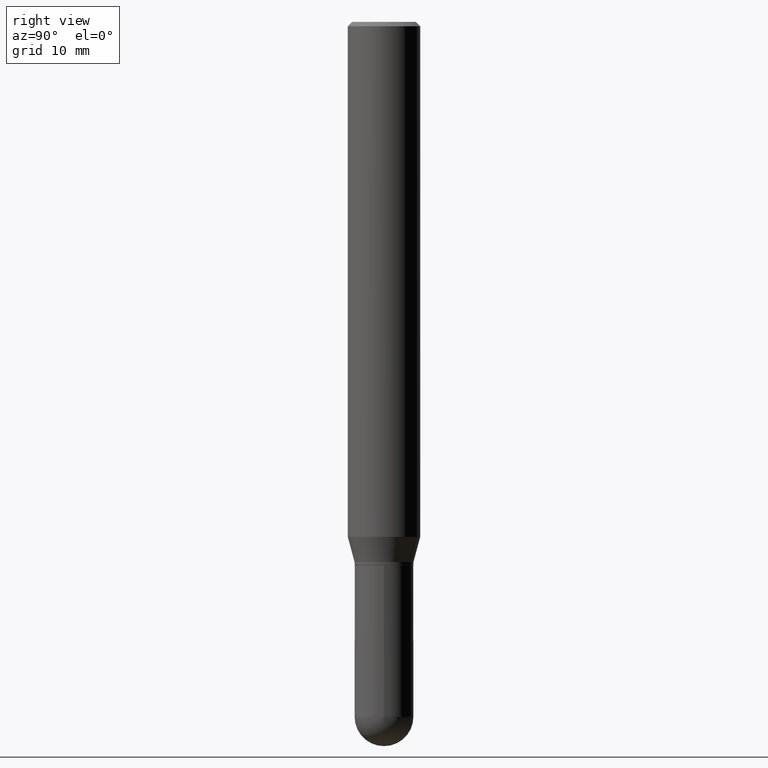
[diagram: clean part render]
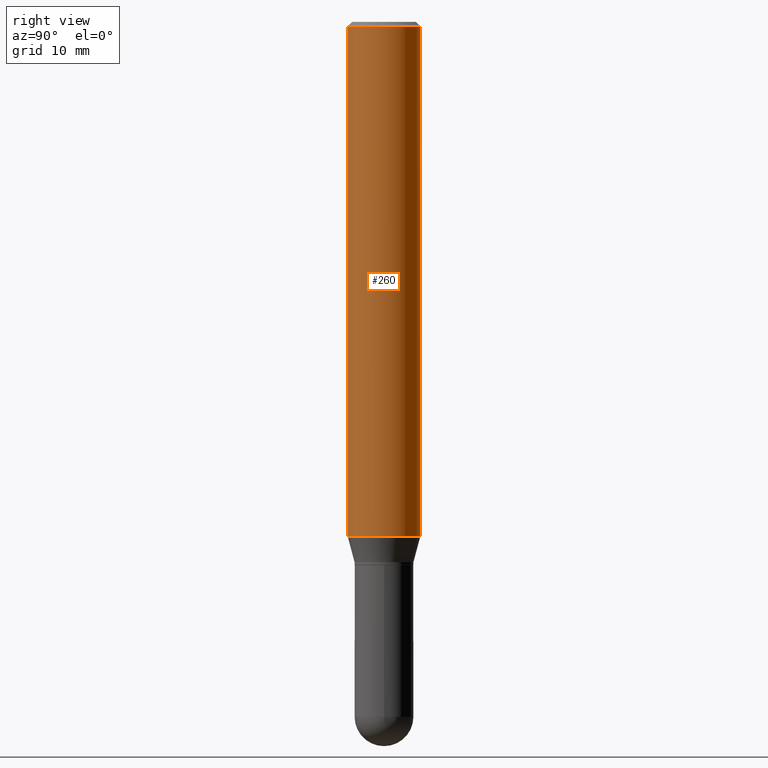
[diagram: same view with one face highlighted and labeled with its STEP entity id]
A machine part, right view. The second image highlights one B-rep face of the part: STEP entity #260.
In plain terms, the highlighted cylindrical surface (edge-blend (fillet) strip) has radius 3.175 mm, axis along (-0, 0, 1).
Its self-contained STEP definition (entity closure, byte-faithful):
#4 = CARTESIAN_POINT ( 'NONE',  ( -8.728703347107828458E-16, -0.1250000000000000555, -0.01499999999999956403 ) ) ;
#45 = CARTESIAN_POINT ( 'NONE',  ( 0.000000000000000000, 0.000000000000000000, 0.000000000000000000 ) ) ;
#51 = ORIENTED_EDGE ( 'NONE', *, *, #296, .F. ) ;
#66 = CIRCLE ( 'NONE', #266, 0.1250000000000000000 ) ;
#81 = DIRECTION ( 'NONE',  ( -6.982962677686265922E-15, -1.000000000000000000, 3.491458814188467583E-15 ) ) ;
#122 = DIRECTION ( 'NONE',  ( -6.982962677686265922E-15, -1.000000000000000000, 3.483106191921935554E-15 ) ) ;
#167 = CYLINDRICAL_SURFACE ( 'NONE', #397, 0.1250000000000000000 ) ;
#169 = VECTOR ( 'NONE', #217, 39.37007874015748143 ) ;
#175 = CARTESIAN_POINT ( 'NONE',  ( 8.881784197001688169E-16, 0.1249999999999999445, -0.01500000000000043486 ) ) ;
#177 = VECTOR ( 'NONE', #385, 39.37007874015748143 ) ;
#180 = EDGE_CURVE ( 'NONE', #374, #474, #222, .T. ) ;
#204 = CARTESIAN_POINT ( 'NONE',  ( 3.668226802601146923E-31, -5.237188221282701522E-17, -0.01499999999999999944 ) ) ;
#205 = EDGE_CURVE ( 'NONE', #206, #374, #66, .T. ) ;
#206 = VERTEX_POINT ( 'NONE', #465 ) ;
#217 = DIRECTION ( 'NONE',  ( -2.445484535067430768E-29, 3.491458814188467188E-15, 1.000000000000000000 ) ) ;
#222 = LINE ( 'NONE', #227, #177 ) ;
#227 = CARTESIAN_POINT ( 'NONE',  ( 8.881784197001251337E-16, 0.1250000000000000000, -4.364323517735584479E-16 ) ) ;
#239 = CARTESIAN_POINT ( 'NONE',  ( 8.881784197001684225E-16, 0.1249999999999937828, -1.777483408562510636 ) ) ;
#247 = CARTESIAN_POINT ( 'NONE',  ( -8.728703347107832402E-16, -0.1250000000000000000, 4.364323517735584479E-16 ) ) ;
#260 = ADVANCED_FACE ( 'NONE', ( #280 ), #167, .T. ) ;
#266 = AXIS2_PLACEMENT_3D ( 'NONE', #435, #315, #311 ) ;
#280 = FACE_OUTER_BOUND ( 'NONE', #364, .T. ) ;
#296 = EDGE_CURVE ( 'NONE', #359, #474, #375, .T. ) ;
#311 = DIRECTION ( 'NONE',  ( -6.982962677686265922E-15, -1.000000000000000000, 4.370956789862821150E-15 ) ) ;
#315 = DIRECTION ( 'NONE',  ( -2.445484535067431049E-29, 3.491458814188467583E-15, 1.000000000000000000 ) ) ;
#358 = DIRECTION ( 'NONE',  ( -2.445484535067431049E-29, 3.491458814188467583E-15, 1.000000000000000000 ) ) ;
#359 = VERTEX_POINT ( 'NONE', #4 ) ;
#364 = EDGE_LOOP ( 'NONE', ( #482, #494, #51, #476 ) ) ;
#374 = VERTEX_POINT ( 'NONE', #239 ) ;
#375 = CIRCLE ( 'NONE', #427, 0.1250000000000000000 ) ;
#385 = DIRECTION ( 'NONE',  ( -2.445484535067430768E-29, 3.491458814188467188E-15, 1.000000000000000000 ) ) ;
#397 = AXIS2_PLACEMENT_3D ( 'NONE', #45, #483, #81 ) ;
#427 = AXIS2_PLACEMENT_3D ( 'NONE', #204, #358, #122 ) ;
#435 = CARTESIAN_POINT ( 'NONE',  ( 4.346808186978562239E-29, -6.206010113899336320E-15, -1.777483408562509970 ) ) ;
#465 = CARTESIAN_POINT ( 'NONE',  ( -8.728703347107399515E-16, -0.1250000000000062172, -1.777483408562509526 ) ) ;
#474 = VERTEX_POINT ( 'NONE', #175 ) ;
#476 = ORIENTED_EDGE ( 'NONE', *, *, #495, .F. ) ;
#482 = ORIENTED_EDGE ( 'NONE', *, *, #205, .T. ) ;
#483 = DIRECTION ( 'NONE',  ( -2.445484535067431049E-29, 3.491458814188467583E-15, 1.000000000000000000 ) ) ;
#485 = LINE ( 'NONE', #247, #169 ) ;
#494 = ORIENTED_EDGE ( 'NONE', *, *, #180, .T. ) ;
#495 = EDGE_CURVE ( 'NONE', #206, #359, #485, .T. ) ;